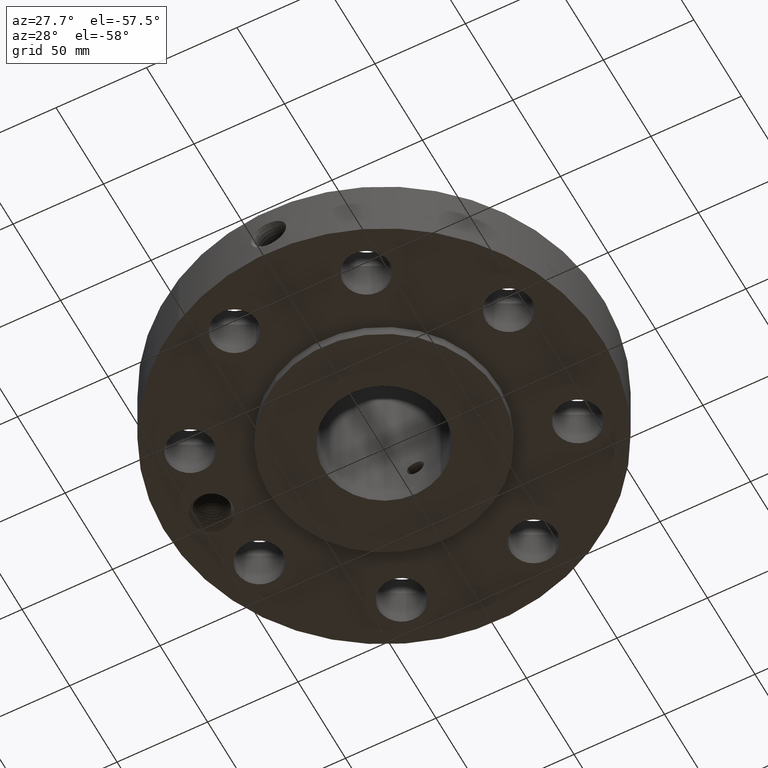
[diagram: clean part render]
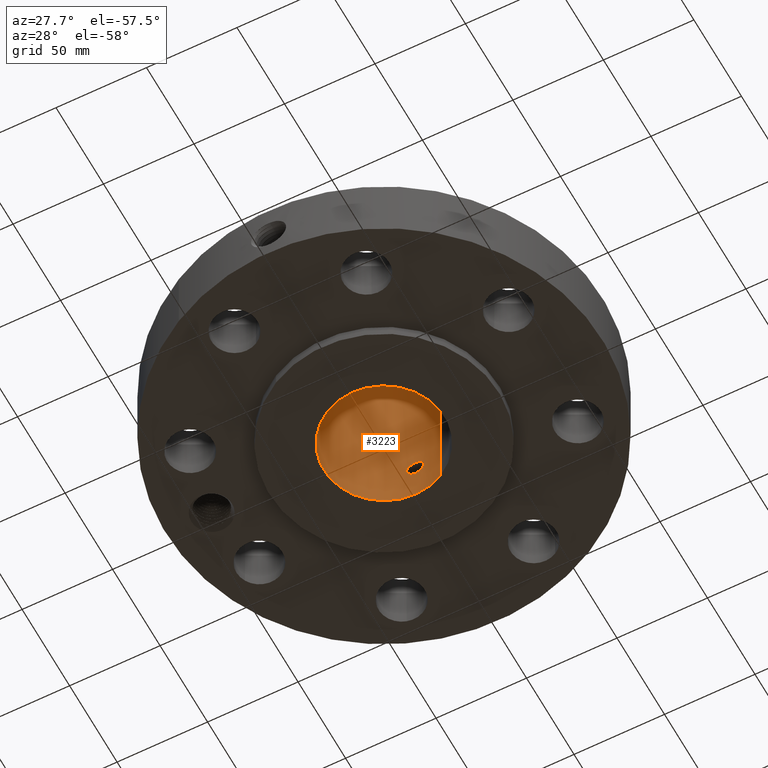
[diagram: same view with one face highlighted and labeled with its STEP entity id]
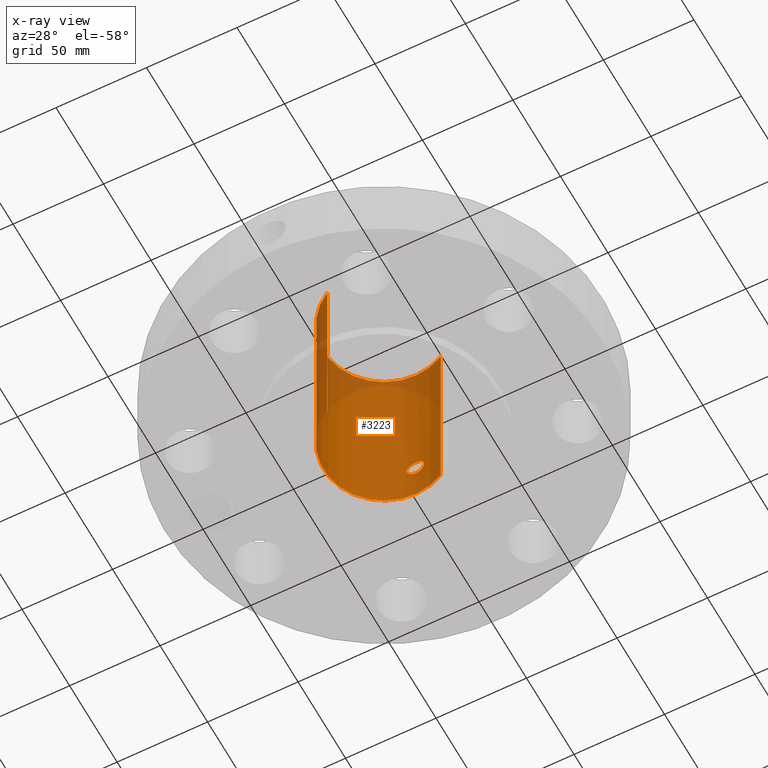
[diagram: x-ray of the same camera — body ghosted, the highlighted face saturated]
A machine part, auxiliary view. The second image highlights one B-rep face of the part: STEP entity #3223.
The next image is the same camera in x-ray: the body ghosted, the highlighted face saturated — about 21% of this face is hidden behind the body in this view.
In plain terms, the highlighted cylindrical surface (partial cylindrical patch) has radius 33.3248 mm, axis along (0, 0, -1).
Its self-contained STEP definition (entity closure, byte-faithful):
#2341=AXIS2_PLACEMENT_3D('Circle Axis2P3D',#2339,#2340,$) ;
#3100=AXIS2_PLACEMENT_3D('Cylinder Axis2P3D',#3097,#3098,#3099) ;
#3172=AXIS2_PLACEMENT_3D('Circle Axis2P3D',#3170,#3171,$) ;
#2334=CARTESIAN_POINT('Vertex',(0.629006306651,1.1513883212,-3.35689481461E-015)) ;
#2336=CARTESIAN_POINT('Vertex',(-0.629006306651,-1.1513883212,-3.35689481461E-015)) ;
#2339=CARTESIAN_POINT('Axis2P3D Location',(0.,0.,0.)) ;
#3097=CARTESIAN_POINT('Axis2P3D Location',(0.,0.,2.12500000001)) ;
#3106=CARTESIAN_POINT('Vertex',(0.629006306651,1.1513883212,4.25000000002)) ;
#3108=CARTESIAN_POINT('Vertex',(-0.629006306651,-1.1513883212,4.25000000002)) ;
#3111=CARTESIAN_POINT('Line Origine',(0.629006306651,1.1513883212,2.12500000001)) ;
#3116=CARTESIAN_POINT('Line Origine',(-0.629006306651,-1.1513883212,2.12500000001)) ;
#3170=CARTESIAN_POINT('Axis2P3D Location',(0.,0.,4.25000000002)) ;
#3182=CARTESIAN_POINT('Control Point',(0.164546730355,1.30164064685,1.02989228849)) ;
#3183=CARTESIAN_POINT('Control Point',(0.153731230619,1.30300788682,1.04968992796)) ;
#3184=CARTESIAN_POINT('Control Point',(0.139945864772,1.30463643262,1.06784704742)) ;
#3185=CARTESIAN_POINT('Control Point',(0.123515369146,1.30636024152,1.08378407901)) ;
#3186=CARTESIAN_POINT('Control Point',(0.0771782829278,1.31033077773,1.11678341445)) ;
#3187=CARTESIAN_POINT('Control Point',(0.0211916700943,1.31250992993,1.13098794462)) ;
#3188=CARTESIAN_POINT('Control Point',(-0.0138299903192,1.31261786808,1.13166404998)) ;
#3189=CARTESIAN_POINT('Control Point',(-0.0703534485027,1.31073926324,1.11961413117)) ;
#3190=CARTESIAN_POINT('Control Point',(-0.117943032822,1.30688680766,1.08839439253)) ;
#3191=CARTESIAN_POINT('Control Point',(-0.13498317884,1.30517113913,1.07308047496)) ;
#3192=CARTESIAN_POINT('Control Point',(-0.174384892622,1.30065332861,1.02508216851)) ;
#3193=CARTESIAN_POINT('Control Point',(-0.192224879744,1.29783605603,0.964095765035)) ;
#3194=CARTESIAN_POINT('Control Point',(-0.193004822576,1.29770414,0.92321909846)) ;
#3195=CARTESIAN_POINT('Control Point',(-0.183186280205,1.29928433062,0.884227178653)) ;
#3196=CARTESIAN_POINT('Control Point',(-0.164546730355,1.30164064685,0.850107711515)) ;
#3197=CARTESIAN_POINT('Vertex',(0.164546730355,1.30164064685,1.02989228849)) ;
#3199=CARTESIAN_POINT('Vertex',(-0.164546730355,1.30164064685,0.850107711515)) ;
#3203=CARTESIAN_POINT('Control Point',(-0.164546730355,1.30164064685,0.850107711515)) ;
#3204=CARTESIAN_POINT('Control Point',(-0.153731230616,1.30300788682,0.830310072039)) ;
#3205=CARTESIAN_POINT('Control Point',(-0.139945864766,1.30463643262,0.812152952579)) ;
#3206=CARTESIAN_POINT('Control Point',(-0.123515369152,1.30636024152,0.796215920998)) ;
#3207=CARTESIAN_POINT('Control Point',(-0.0771782829292,1.31033077773,0.763216585556)) ;
#3208=CARTESIAN_POINT('Control Point',(-0.0211916700893,1.31250992993,0.749012055389)) ;
#3209=CARTESIAN_POINT('Control Point',(0.013829990318,1.31261786808,0.748335950031)) ;
#3210=CARTESIAN_POINT('Control Point',(0.0703534485034,1.31073926324,0.760385868835)) ;
#3211=CARTESIAN_POINT('Control Point',(0.117943032824,1.30688680766,0.791605607483)) ;
#3212=CARTESIAN_POINT('Control Point',(0.134983178841,1.30517113913,0.806919525049)) ;
#3213=CARTESIAN_POINT('Control Point',(0.174384892621,1.30065332861,0.854917831495)) ;
#3214=CARTESIAN_POINT('Control Point',(0.192224879743,1.29783605603,0.915904234968)) ;
#3215=CARTESIAN_POINT('Control Point',(0.193004822575,1.29770414,0.956780901554)) ;
#3216=CARTESIAN_POINT('Control Point',(0.183186280203,1.29928433062,0.995772821357)) ;
#3217=CARTESIAN_POINT('Control Point',(0.164546730355,1.30164064685,1.02989228849)) ;
#2340=DIRECTION('Axis2P3D Direction',(0.,0.,-0.0393700787402)) ;
#3098=DIRECTION('Axis2P3D Direction',(0.,0.,-0.0393700787402)) ;
#3099=DIRECTION('Axis2P3D XDirection',(-0.0188750212049,-0.0345504945626,0.)) ;
#3112=DIRECTION('Vector Direction',(0.,0.,-0.0393700787402)) ;
#3117=DIRECTION('Vector Direction',(0.,0.,-0.0393700787402)) ;
#3171=DIRECTION('Axis2P3D Direction',(0.,0.,-0.0393700787402)) ;
#3113=VECTOR('Line Direction',#3112,0.0393700787402) ;
#3118=VECTOR('Line Direction',#3117,0.0393700787402) ;
#3176=ORIENTED_EDGE('',*,*,#3174,.F.) ;
#3177=ORIENTED_EDGE('',*,*,#3120,.T.) ;
#3178=ORIENTED_EDGE('',*,*,#2343,.T.) ;
#3179=ORIENTED_EDGE('',*,*,#3115,.F.) ;
#3220=ORIENTED_EDGE('',*,*,#3201,.F.) ;
#3221=ORIENTED_EDGE('',*,*,#3218,.F.) ;
#3222=FACE_BOUND('',#3219,.T.) ;
#3223=ADVANCED_FACE('PartBody',(#3180,#3222),#3101,.F.) ;
#3181=B_SPLINE_CURVE_WITH_KNOTS('',5,(#3182,#3183,#3184,#3185,#3186,#3187,#3188,#3189,#3190,#3191,#3192,#3193,#3194,#3195,#3196),.UNSPECIFIED.,.F.,.U.,(6,3,3,3,6),(0.,4.05919858115,10.1275934433,14.1901615055,21.1858284784),.UNSPECIFIED.) ;
#3202=B_SPLINE_CURVE_WITH_KNOTS('',5,(#3203,#3204,#3205,#3206,#3207,#3208,#3209,#3210,#3211,#3212,#3213,#3214,#3215,#3216,#3217),.UNSPECIFIED.,.F.,.U.,(6,3,3,3,6),(0.,4.05919858201,10.1275934444,14.1901615066,21.185828479),.UNSPECIFIED.) ;
#2342=CIRCLE('generated circle',#2341,1.31200000001) ;
#3173=CIRCLE('generated circle',#3172,1.31200000001) ;
#3101=CYLINDRICAL_SURFACE('generated cylinder',#3100,1.31200000001) ;
#2343=EDGE_CURVE('',#2337,#2335,#2342,.T.) ;
#3115=EDGE_CURVE('',#3107,#2335,#3114,.T.) ;
#3120=EDGE_CURVE('',#3109,#2337,#3119,.T.) ;
#3174=EDGE_CURVE('',#3109,#3107,#3173,.T.) ;
#3201=EDGE_CURVE('',#3198,#3200,#3181,.T.) ;
#3218=EDGE_CURVE('',#3200,#3198,#3202,.T.) ;
#3175=EDGE_LOOP('',(#3176,#3177,#3178,#3179)) ;
#3219=EDGE_LOOP('',(#3220,#3221)) ;
#3180=FACE_OUTER_BOUND('',#3175,.T.) ;
#3114=LINE('Line',#3111,#3113) ;
#3119=LINE('Line',#3116,#3118) ;
#2335=VERTEX_POINT('',#2334) ;
#2337=VERTEX_POINT('',#2336) ;
#3107=VERTEX_POINT('',#3106) ;
#3109=VERTEX_POINT('',#3108) ;
#3198=VERTEX_POINT('',#3197) ;
#3200=VERTEX_POINT('',#3199) ;